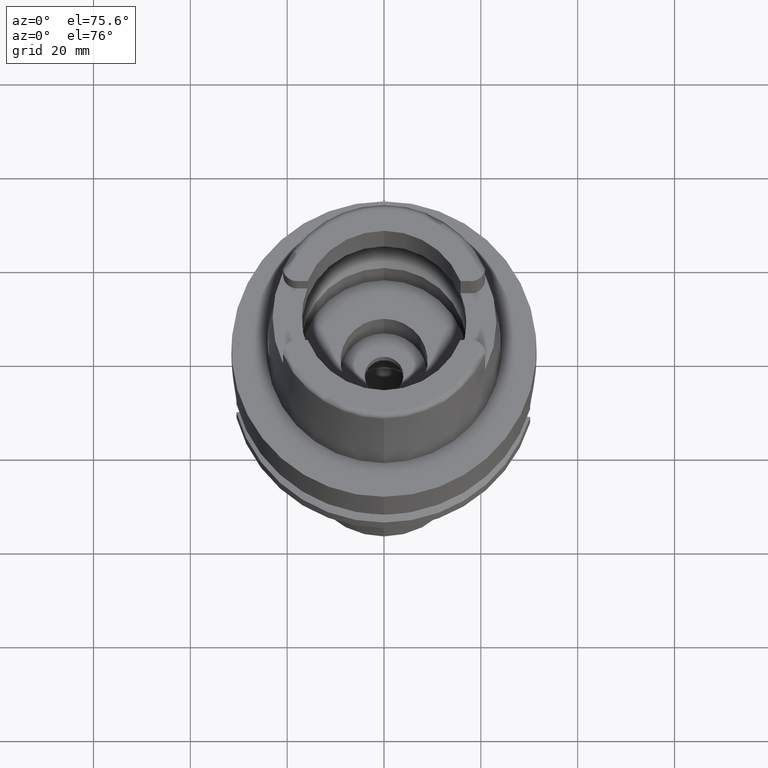
[diagram: clean part render]
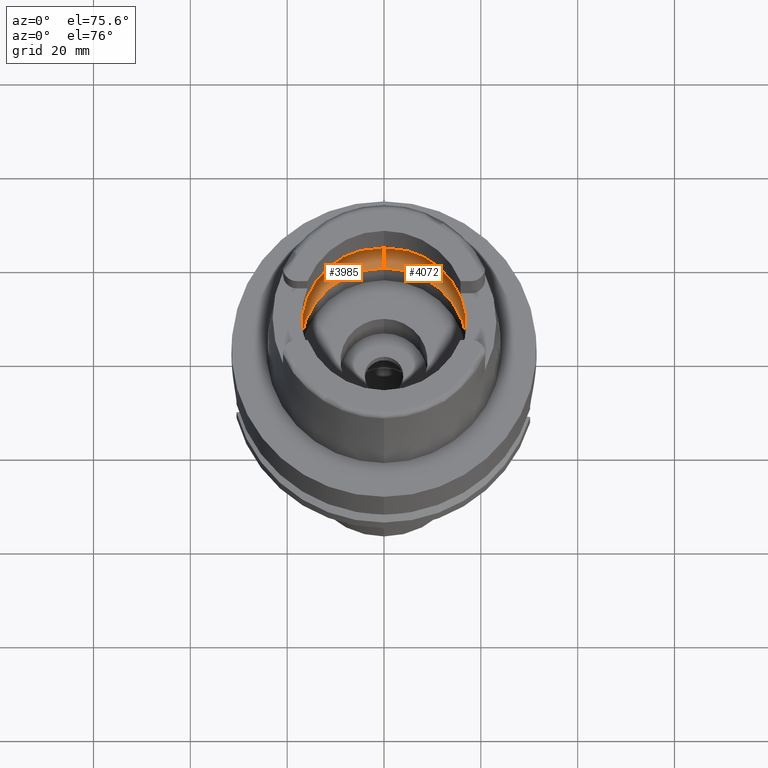
[diagram: same view with one multi-face feature highlighted, each face labeled with its STEP entity id]
A machine part, auxiliary view. The highlighted faces form ONE feature: a constant-radius fillet chain: 2 tangent blend faces with common blend radius 8 mm. The faces share edges in the B-rep.
Their STEP definitions:
[1] entity #3985 (Torus):
#1981=CARTESIAN_POINT('',(-1.984575864666E1,-2.479085262491E0,
6.186348233825E0));
#1982=CARTESIAN_POINT('',(-1.987370771882E1,-2.255345260874E0,
5.989212771894E0));
#1983=CARTESIAN_POINT('',(-1.991332895189E1,-1.758882382518E0,
5.646921041047E0));
#1984=CARTESIAN_POINT('',(-1.994018891292E1,-9.058447440112E-1,
5.323259319607E0));
#1985=CARTESIAN_POINT('',(-1.994501428476E1,-3.022092202537E-1,5.25E0));
#1986=CARTESIAN_POINT('',(-1.994501428476E1,0.E0,5.25E0));
#1991=CARTESIAN_POINT('',(-1.994501428476E1,0.E0,5.25E0));
#1992=CARTESIAN_POINT('',(-1.994501428476E1,3.022079959061E-1,5.25E0));
#1993=CARTESIAN_POINT('',(-1.994018898018E1,9.058420490936E-1,
5.323258465798E0));
#1994=CARTESIAN_POINT('',(-1.991332889140E1,1.758884038002E0,5.646921660838E0));
#1995=CARTESIAN_POINT('',(-1.987370764676E1,2.255345837801E0,5.989213280220E0));
#1996=CARTESIAN_POINT('',(-1.984575864666E1,2.479085262491E0,6.186348233825E0));
#2001=CARTESIAN_POINT('',(0.E0,0.E0,6.186348233825E0));
#2002=DIRECTION('',(0.E0,0.E0,-1.E0));
#2003=DIRECTION('',(-9.922879323328E-1,1.239542631245E-1,0.E0));
#2004=AXIS2_PLACEMENT_3D('',#2001,#2002,#2003);
#2009=CARTESIAN_POINT('',(0.E0,0.E0,1.500000000001E-1));
#2010=DIRECTION('',(0.E0,0.E0,1.E0));
#2011=DIRECTION('',(0.E0,1.E0,0.E0));
#2012=AXIS2_PLACEMENT_3D('',#2009,#2010,#2011);
#2017=CARTESIAN_POINT('',(0.E0,-1.2E1,6.186348233825E0));
#2018=DIRECTION('',(-1.E0,0.E0,0.E0));
#2019=DIRECTION('',(0.E0,-6.5625E-1,-7.545435292281E-1));
#2020=AXIS2_PLACEMENT_3D('',#2017,#2018,#2019);
#2025=CARTESIAN_POINT('',(0.E0,0.E0,6.186348233825E0));
#2026=DIRECTION('',(0.E0,0.E0,-1.E0));
#2027=DIRECTION('',(0.E0,-1.E0,0.E0));
#2028=AXIS2_PLACEMENT_3D('',#2025,#2026,#2027);
#2052=CARTESIAN_POINT('',(-1.984575864666E1,-2.479085262491E0,
6.186348233825E0));
#2155=CARTESIAN_POINT('',(0.E0,1.2E1,6.186348233825E0));
#2156=DIRECTION('',(1.E0,0.E0,0.E0));
#2157=DIRECTION('',(0.E0,6.5625E-1,-7.545435292281E-1));
#2158=AXIS2_PLACEMENT_3D('',#2155,#2156,#2157);
#2331=VERTEX_POINT('',#2052);
#2332=CARTESIAN_POINT('',(0.E0,-2.E1,6.186348233825E0));
#2333=VERTEX_POINT('',#2332);
#2334=CARTESIAN_POINT('',(0.E0,2.E1,6.186348233825E0));
#2335=VERTEX_POINT('',#2334);
#2336=CARTESIAN_POINT('',(-1.984575864666E1,2.479085262490E0,6.186348233825E0));
#2337=VERTEX_POINT('',#2336);
#2338=CARTESIAN_POINT('',(-1.994501428476E1,0.E0,5.25E0));
#2339=VERTEX_POINT('',#2338);
#2344=CARTESIAN_POINT('',(0.E0,1.725E1,1.500000000001E-1));
#2345=VERTEX_POINT('',#2344);
#2346=CARTESIAN_POINT('',(0.E0,-1.725E1,1.500000000001E-1));
#2347=VERTEX_POINT('',#2346);
#3965=CARTESIAN_POINT('',(0.E0,0.E0,6.186348233825E0));
#3966=DIRECTION('',(0.E0,0.E0,1.E0));
#3967=DIRECTION('',(0.E0,1.E0,0.E0));
#3968=AXIS2_PLACEMENT_3D('',#3965,#3966,#3967);
#3969=TOROIDAL_SURFACE('',#3968,1.2E1,8.E0);
#3971=ORIENTED_EDGE('',*,*,#3970,.T.);
#3973=ORIENTED_EDGE('',*,*,#3972,.T.);
#3975=ORIENTED_EDGE('',*,*,#3974,.T.);
#3977=ORIENTED_EDGE('',*,*,#3976,.F.);
#3978=ORIENTED_EDGE('',*,*,#3960,.T.);
#3980=ORIENTED_EDGE('',*,*,#3979,.T.);
#3982=ORIENTED_EDGE('',*,*,#3981,.T.);
#3983=EDGE_LOOP('',(#3971,#3973,#3975,#3977,#3978,#3980,#3982));
#3984=FACE_OUTER_BOUND('',#3983,.F.);
#1987=B_SPLINE_CURVE_WITH_KNOTS('',3,(#1981,#1982,#1983,#1984,#1985,#1986),
.UNSPECIFIED.,.F.,.F.,(4,1,1,4),(0.E0,3.333333333333E-1,6.666666666667E-1,1.E0),
.UNSPECIFIED.);
#1997=B_SPLINE_CURVE_WITH_KNOTS('',3,(#1991,#1992,#1993,#1994,#1995,#1996),
.UNSPECIFIED.,.F.,.F.,(4,1,1,4),(0.E0,3.333333333333E-1,6.666666666667E-1,1.E0),
.UNSPECIFIED.);
#2005=CIRCLE('',#2004,2.E1);
#2013=CIRCLE('',#2012,1.725E1);
#2021=CIRCLE('',#2020,8.E0);
#2029=CIRCLE('',#2028,2.E1);
#2159=CIRCLE('',#2158,8.E0);
#3960=EDGE_CURVE('',#2345,#2347,#2013,.T.);
#3970=EDGE_CURVE('',#2331,#2339,#1987,.T.);
#3972=EDGE_CURVE('',#2339,#2337,#1997,.T.);
#3974=EDGE_CURVE('',#2337,#2335,#2005,.T.);
#3976=EDGE_CURVE('',#2345,#2335,#2159,.T.);
#3979=EDGE_CURVE('',#2347,#2333,#2021,.T.);
#3981=EDGE_CURVE('',#2333,#2331,#2029,.T.);
#3985=ADVANCED_FACE('',(#3984),#3969,.F.);
[2] entity #4072 (Torus):
#2017=CARTESIAN_POINT('',(0.E0,-1.2E1,6.186348233825E0));
#2018=DIRECTION('',(-1.E0,0.E0,0.E0));
#2019=DIRECTION('',(0.E0,-6.5625E-1,-7.545435292281E-1));
#2020=AXIS2_PLACEMENT_3D('',#2017,#2018,#2019);
#2081=CARTESIAN_POINT('',(1.984575864666E1,-2.479085262491E0,6.186348233825E0));
#2110=CARTESIAN_POINT('',(1.984575864666E1,2.479085262491E0,6.186348233825E0));
#2129=CARTESIAN_POINT('',(1.994501428476E1,0.E0,5.25E0));
#2130=CARTESIAN_POINT('',(1.994501428476E1,-3.022109186395E-1,5.25E0));
#2131=CARTESIAN_POINT('',(1.994018886112E1,-9.058486760299E-1,
5.323260138817E0));
#2132=CARTESIAN_POINT('',(1.991332874853E1,-1.758885968800E0,5.646923075843E0));
#2133=CARTESIAN_POINT('',(1.987370755586E1,-2.255346565443E0,5.989213921339E0));
#2134=CARTESIAN_POINT('',(1.984575864666E1,-2.479085262491E0,6.186348233825E0));
#2139=CARTESIAN_POINT('',(0.E0,0.E0,6.186348233825E0));
#2140=DIRECTION('',(0.E0,0.E0,-1.E0));
#2141=DIRECTION('',(9.922879323328E-1,-1.239542631245E-1,0.E0));
#2142=AXIS2_PLACEMENT_3D('',#2139,#2140,#2141);
#2147=CARTESIAN_POINT('',(0.E0,0.E0,1.500000000001E-1));
#2148=DIRECTION('',(0.E0,0.E0,1.E0));
#2149=DIRECTION('',(0.E0,-1.E0,0.E0));
#2150=AXIS2_PLACEMENT_3D('',#2147,#2148,#2149);
#2155=CARTESIAN_POINT('',(0.E0,1.2E1,6.186348233825E0));
#2156=DIRECTION('',(1.E0,0.E0,0.E0));
#2157=DIRECTION('',(0.E0,6.5625E-1,-7.545435292281E-1));
#2158=AXIS2_PLACEMENT_3D('',#2155,#2156,#2157);
#2163=CARTESIAN_POINT('',(0.E0,0.E0,6.186348233825E0));
#2164=DIRECTION('',(0.E0,0.E0,-1.E0));
#2165=DIRECTION('',(0.E0,1.E0,0.E0));
#2166=AXIS2_PLACEMENT_3D('',#2163,#2164,#2165);
#2171=CARTESIAN_POINT('',(1.984575864666E1,2.479085262491E0,6.186348233825E0));
#2172=CARTESIAN_POINT('',(1.987370781167E1,2.255344517610E0,5.989212117010E0));
#2173=CARTESIAN_POINT('',(1.991332909699E1,1.758880408516E0,5.646919602665E0));
#2174=CARTESIAN_POINT('',(1.994018903230E1,9.058380857037E-1,5.323257641096E0));
#2175=CARTESIAN_POINT('',(1.994501428476E1,3.022062841843E-1,5.25E0));
#2176=CARTESIAN_POINT('',(1.994501428476E1,0.E0,5.25E0));
#2332=CARTESIAN_POINT('',(0.E0,-2.E1,6.186348233825E0));
#2333=VERTEX_POINT('',#2332);
#2334=CARTESIAN_POINT('',(0.E0,2.E1,6.186348233825E0));
#2335=VERTEX_POINT('',#2334);
#2340=VERTEX_POINT('',#2081);
#2342=VERTEX_POINT('',#2129);
#2343=VERTEX_POINT('',#2110);
#2344=CARTESIAN_POINT('',(0.E0,1.725E1,1.500000000001E-1));
#2345=VERTEX_POINT('',#2344);
#2346=CARTESIAN_POINT('',(0.E0,-1.725E1,1.500000000001E-1));
#2347=VERTEX_POINT('',#2346);
#4057=CARTESIAN_POINT('',(0.E0,0.E0,6.186348233825E0));
#4058=DIRECTION('',(0.E0,0.E0,1.E0));
#4059=DIRECTION('',(0.E0,1.E0,0.E0));
#4060=AXIS2_PLACEMENT_3D('',#4057,#4058,#4059);
#4061=TOROIDAL_SURFACE('',#4060,1.2E1,8.E0);
#4062=ORIENTED_EDGE('',*,*,#4047,.T.);
#4063=ORIENTED_EDGE('',*,*,#4036,.T.);
#4064=ORIENTED_EDGE('',*,*,#3979,.F.);
#4065=ORIENTED_EDGE('',*,*,#3944,.T.);
#4066=ORIENTED_EDGE('',*,*,#3976,.T.);
#4067=ORIENTED_EDGE('',*,*,#4030,.T.);
#4069=ORIENTED_EDGE('',*,*,#4068,.T.);
#4070=EDGE_LOOP('',(#4062,#4063,#4064,#4065,#4066,#4067,#4069));
#4071=FACE_OUTER_BOUND('',#4070,.F.);
#2021=CIRCLE('',#2020,8.E0);
#2135=B_SPLINE_CURVE_WITH_KNOTS('',3,(#2129,#2130,#2131,#2132,#2133,#2134),
.UNSPECIFIED.,.F.,.F.,(4,1,1,4),(0.E0,3.333333333333E-1,6.666666666667E-1,1.E0),
.UNSPECIFIED.);
#2143=CIRCLE('',#2142,2.E1);
#2151=CIRCLE('',#2150,1.725E1);
#2159=CIRCLE('',#2158,8.E0);
#2167=CIRCLE('',#2166,2.E1);
#2177=B_SPLINE_CURVE_WITH_KNOTS('',3,(#2171,#2172,#2173,#2174,#2175,#2176),
.UNSPECIFIED.,.F.,.F.,(4,1,1,4),(0.E0,3.333333333333E-1,6.666666666667E-1,1.E0),
.UNSPECIFIED.);
#3944=EDGE_CURVE('',#2347,#2345,#2151,.T.);
#3976=EDGE_CURVE('',#2345,#2335,#2159,.T.);
#3979=EDGE_CURVE('',#2347,#2333,#2021,.T.);
#4030=EDGE_CURVE('',#2335,#2343,#2167,.T.);
#4036=EDGE_CURVE('',#2340,#2333,#2143,.T.);
#4047=EDGE_CURVE('',#2342,#2340,#2135,.T.);
#4068=EDGE_CURVE('',#2343,#2342,#2177,.T.);
#4072=ADVANCED_FACE('',(#4071),#4061,.F.);